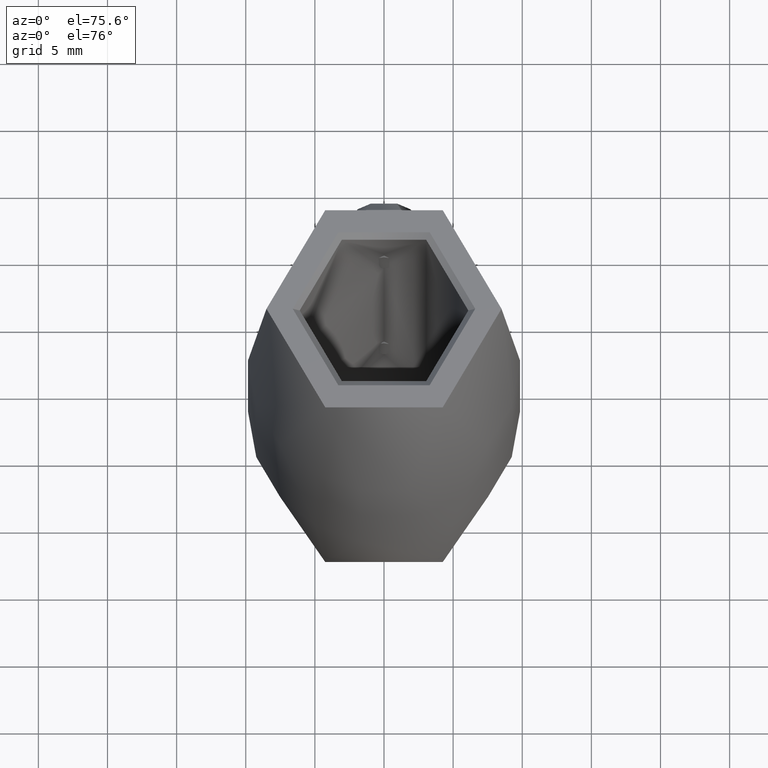
[diagram: clean part render]
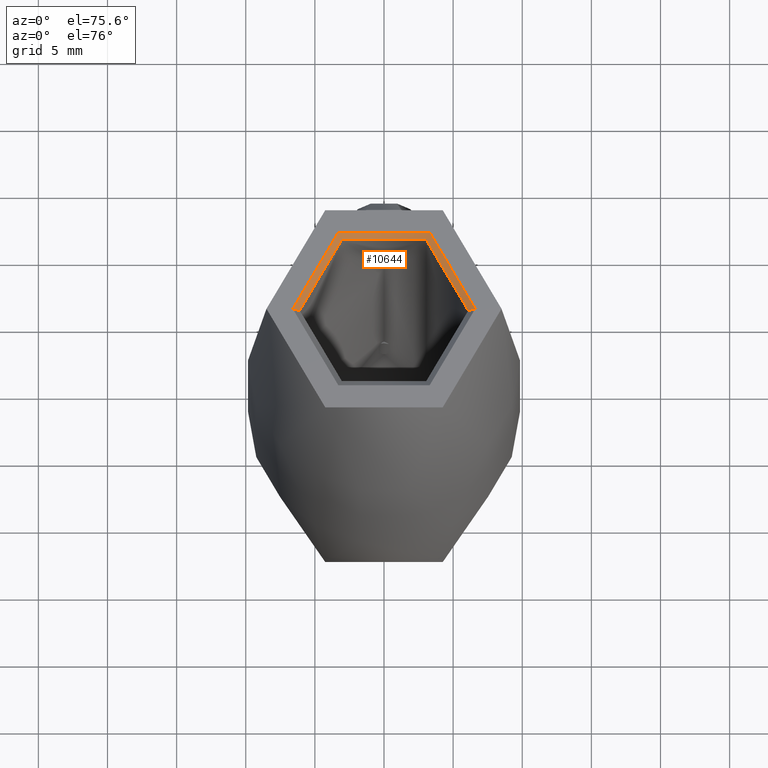
[diagram: same view with one face highlighted and labeled with its STEP entity id]
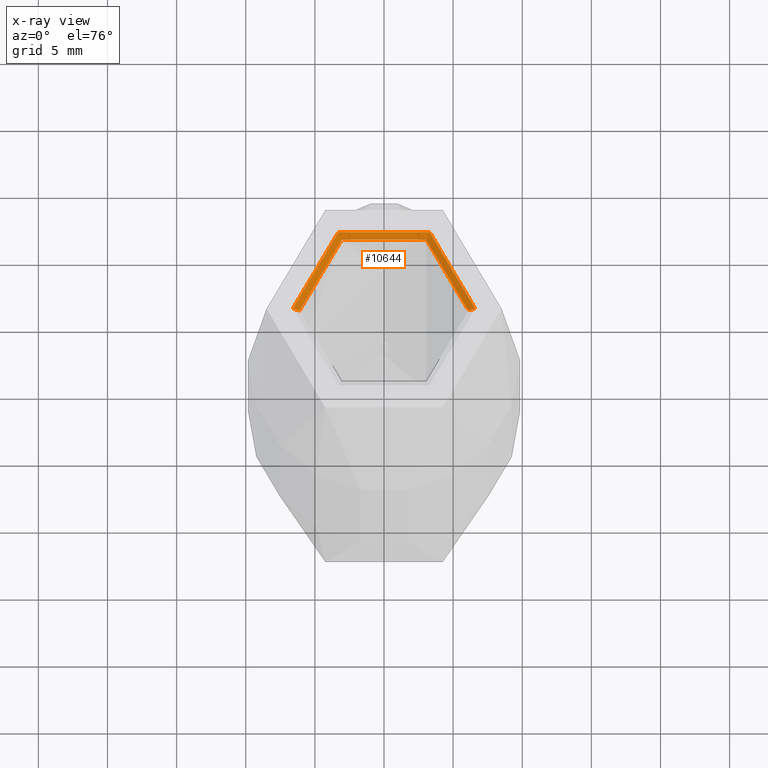
[diagram: x-ray of the same camera — body ghosted, the highlighted face saturated]
A machine part, auxiliary view. The second image highlights one B-rep face of the part: STEP entity #10644.
The next image is the same camera in x-ray: the body ghosted, the highlighted face saturated — about 0% of this face is hidden behind the body in this view.
In plain terms, the highlighted conical surface has half-angle 45 deg.
Its self-contained STEP definition (entity closure, byte-faithful):
#832 = EDGE_CURVE ( 'NONE', #1684, #4991, #9581, .T. ) ;
#1287 = ORIENTED_EDGE ( 'NONE', *, *, #832, .T. ) ;
#1324 = AXIS2_PLACEMENT_3D ( 'NONE', #7183, #7123, #3242 ) ;
#1684 = VERTEX_POINT ( 'NONE', #16276 ) ;
#2620 = CARTESIAN_POINT ( 'NONE',  ( -6.099999999999999645, 7.470345474798854293E-16, 22.00000000000000000 ) ) ;
#3052 = CARTESIAN_POINT ( 'NONE',  ( 0.000000000000000000, 0.000000000000000000, 22.00000000000000000 ) ) ;
#3242 = DIRECTION ( 'NONE',  ( 1.000000000000000000, 0.000000000000000000, 0.000000000000000000 ) ) ;
#3363 = EDGE_LOOP ( 'NONE', ( #9712, #11721, #1287, #5174 ) ) ;
#4001 = CARTESIAN_POINT ( 'NONE',  ( -6.099999999999999645, 7.470345474798854293E-16, 22.00000000000000000 ) ) ;
#4224 = DIRECTION ( 'NONE',  ( -0.7071067811865536790, 8.659560562355008046E-17, 0.7071067811865414665 ) ) ;
#4239 = CARTESIAN_POINT ( 'NONE',  ( 6.600000000000015632, 0.000000000000000000, 22.50000000000000711 ) ) ;
#4307 = VECTOR ( 'NONE', #15972, 1000.000000000000000 ) ;
#4533 = CIRCLE ( 'NONE', #9117, 6.600000000000015632 ) ;
#4991 = VERTEX_POINT ( 'NONE', #4239 ) ;
#5174 = ORIENTED_EDGE ( 'NONE', *, *, #15537, .F. ) ;
#6060 = CARTESIAN_POINT ( 'NONE',  ( -6.600000000000015632, 8.082668874372550741E-16, 22.50000000000000711 ) ) ;
#6399 = FACE_OUTER_BOUND ( 'NONE', #3363, .T. ) ;
#7123 = DIRECTION ( 'NONE',  ( 0.000000000000000000, 0.000000000000000000, 1.000000000000000000 ) ) ;
#7183 = CARTESIAN_POINT ( 'NONE',  ( 0.000000000000000000, 0.000000000000000000, 22.00000000000000000 ) ) ;
#7581 = CIRCLE ( 'NONE', #10622, 6.099999999999999645 ) ;
#7826 = CONICAL_SURFACE ( 'NONE', #1324, 6.099999999999999645, 0.7853981633974570498 ) ;
#8791 = VECTOR ( 'NONE', #4224, 1000.000000000000000 ) ;
#9117 = AXIS2_PLACEMENT_3D ( 'NONE', #14459, #15801, #13163 ) ;
#9581 = LINE ( 'NONE', #15918, #4307 ) ;
#9712 = ORIENTED_EDGE ( 'NONE', *, *, #14731, .F. ) ;
#10622 = AXIS2_PLACEMENT_3D ( 'NONE', #3052, #13476, #12127 ) ;
#10644 = ADVANCED_FACE ( 'NONE', ( #6399 ), #7826, .F. ) ;
#11003 = VERTEX_POINT ( 'NONE', #2620 ) ;
#11721 = ORIENTED_EDGE ( 'NONE', *, *, #14842, .F. ) ;
#11863 = VERTEX_POINT ( 'NONE', #6060 ) ;
#12127 = DIRECTION ( 'NONE',  ( -1.000000000000000000, 0.000000000000000000, 0.000000000000000000 ) ) ;
#13163 = DIRECTION ( 'NONE',  ( -1.000000000000000000, 0.000000000000000000, 0.000000000000000000 ) ) ;
#13437 = LINE ( 'NONE', #4001, #8791 ) ;
#13476 = DIRECTION ( 'NONE',  ( 0.000000000000000000, 0.000000000000000000, 1.000000000000000000 ) ) ;
#14459 = CARTESIAN_POINT ( 'NONE',  ( 0.000000000000000000, 0.000000000000000000, 22.50000000000000711 ) ) ;
#14731 = EDGE_CURVE ( 'NONE', #11003, #11863, #13437, .T. ) ;
#14842 = EDGE_CURVE ( 'NONE', #1684, #11003, #7581, .T. ) ;
#15537 = EDGE_CURVE ( 'NONE', #11863, #4991, #4533, .T. ) ;
#15801 = DIRECTION ( 'NONE',  ( 0.000000000000000000, 0.000000000000000000, -1.000000000000000000 ) ) ;
#15918 = CARTESIAN_POINT ( 'NONE',  ( 6.099999999999999645, 0.000000000000000000, 22.00000000000000000 ) ) ;
#15972 = DIRECTION ( 'NONE',  ( 0.7071067811865536790, 0.000000000000000000, 0.7071067811865414665 ) ) ;
#16276 = CARTESIAN_POINT ( 'NONE',  ( 6.099999999999999645, 0.000000000000000000, 22.00000000000000000 ) ) ;